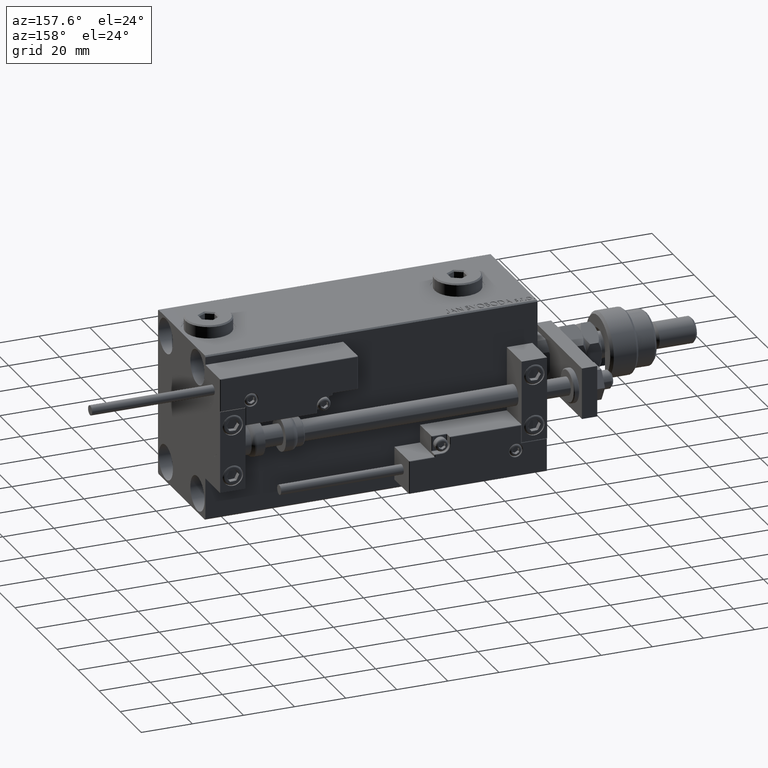
[diagram: clean part render]
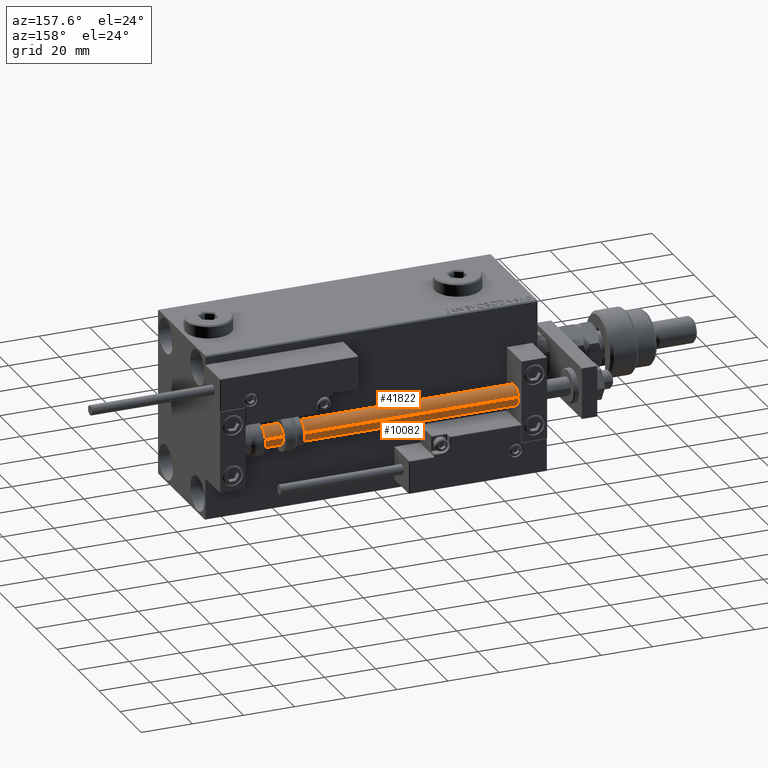
[diagram: same view with one multi-face feature highlighted, each face labeled with its STEP entity id]
A machine part, auxiliary view. The highlighted faces form ONE feature: a constant-radius fillet chain: 2 tangent blend faces with common blend radius 4 mm. The faces share edges in the B-rep.
Their STEP definitions:
[1] entity #41822 (Cylinder):
#30 = ORIENTED_EDGE ( 'NONE', *, *, #22172, .F. ) ;
#1838 = DIRECTION ( 'NONE',  ( 1.000000000000000000, 0.000000000000000000, 0.000000000000000000 ) ) ;
#2403 = EDGE_CURVE ( 'NONE', #45633, #34324, #8787, .T. ) ;
#2994 = CYLINDRICAL_SURFACE ( 'NONE', #21738, 4.000000000000000000 ) ;
#3385 = EDGE_CURVE ( 'NONE', #45633, #40291, #32394, .T. ) ;
#4905 = CIRCLE ( 'NONE', #25983, 4.000000000000000000 ) ;
#6274 = DIRECTION ( 'NONE',  ( 1.000000000000000000, 0.000000000000000000, 0.000000000000000000 ) ) ;
#6841 = DIRECTION ( 'NONE',  ( -0.000000000000000000, -0.000000000000000000, -1.000000000000000000 ) ) ;
#7110 = FACE_OUTER_BOUND ( 'NONE', #8977, .T. ) ;
#7442 = DIRECTION ( 'NONE',  ( -0.000000000000000000, -0.000000000000000000, -1.000000000000000000 ) ) ;
#8787 = CIRCLE ( 'NONE', #53517, 4.000000000000000000 ) ;
#8977 = EDGE_LOOP ( 'NONE', ( #40570, #48009, #23545, #30 ) ) ;
#14084 = CARTESIAN_POINT ( 'NONE',  ( 4.000000000000000000, 4.898587196589412829E-16, 130.0000000000000000 ) ) ;
#14951 = CARTESIAN_POINT ( 'NONE',  ( 4.000000000000000000, 4.898587196589412829E-16, 130.0000000000000000 ) ) ;
#17699 = CARTESIAN_POINT ( 'NONE',  ( -4.000000000000000000, 0.000000000000000000, 2.000000000000029310 ) ) ;
#19761 = DIRECTION ( 'NONE',  ( -1.000000000000000000, 0.000000000000000000, 0.000000000000000000 ) ) ;
#19808 = CARTESIAN_POINT ( 'NONE',  ( -4.000000000000000000, 0.000000000000000000, 130.0000000000000000 ) ) ;
#21622 = EDGE_CURVE ( 'NONE', #40291, #27126, #4905, .T. ) ;
#21738 = AXIS2_PLACEMENT_3D ( 'NONE', #53550, #6841, #19761 ) ;
#22172 = EDGE_CURVE ( 'NONE', #34324, #27126, #48646, .T. ) ;
#23545 = ORIENTED_EDGE ( 'NONE', *, *, #21622, .T. ) ;
#24155 = DIRECTION ( 'NONE',  ( -0.000000000000000000, -0.000000000000000000, -1.000000000000000000 ) ) ;
#25983 = AXIS2_PLACEMENT_3D ( 'NONE', #44190, #36225, #6274 ) ;
#27126 = VERTEX_POINT ( 'NONE', #17699 ) ;
#29311 = CARTESIAN_POINT ( 'NONE',  ( 4.000000000000000000, 4.898587196589412829E-16, 2.000000000000029310 ) ) ;
#32394 = LINE ( 'NONE', #14084, #44761 ) ;
#33959 = CARTESIAN_POINT ( 'NONE',  ( -4.000000000000000000, 0.000000000000000000, 130.0000000000000000 ) ) ;
#34324 = VERTEX_POINT ( 'NONE', #33959 ) ;
#35657 = VECTOR ( 'NONE', #7442, 1000.000000000000000 ) ;
#36225 = DIRECTION ( 'NONE',  ( -0.000000000000000000, -0.000000000000000000, 1.000000000000000000 ) ) ;
#40289 = CARTESIAN_POINT ( 'NONE',  ( 0.000000000000000000, 0.000000000000000000, 130.0000000000000000 ) ) ;
#40291 = VERTEX_POINT ( 'NONE', #29311 ) ;
#40570 = ORIENTED_EDGE ( 'NONE', *, *, #2403, .F. ) ;
#41822 = ADVANCED_FACE ( 'NONE', ( #7110 ), #2994, .T. ) ;
#43593 = DIRECTION ( 'NONE',  ( 0.000000000000000000, 0.000000000000000000, 1.000000000000000000 ) ) ;
#44190 = CARTESIAN_POINT ( 'NONE',  ( 0.000000000000000000, 0.000000000000000000, 2.000000000000029310 ) ) ;
#44761 = VECTOR ( 'NONE', #24155, 1000.000000000000000 ) ;
#45633 = VERTEX_POINT ( 'NONE', #14951 ) ;
#48009 = ORIENTED_EDGE ( 'NONE', *, *, #3385, .T. ) ;
#48646 = LINE ( 'NONE', #19808, #35657 ) ;
#53517 = AXIS2_PLACEMENT_3D ( 'NONE', #40289, #43593, #1838 ) ;
#53550 = CARTESIAN_POINT ( 'NONE',  ( 0.000000000000000000, 0.000000000000000000, 130.0000000000000000 ) ) ;
[2] entity #10082 (Cylinder):
#1135 = FACE_OUTER_BOUND ( 'NONE', #15844, .T. ) ;
#1665 = DIRECTION ( 'NONE',  ( -1.000000000000000000, 0.000000000000000000, 0.000000000000000000 ) ) ;
#3283 = DIRECTION ( 'NONE',  ( -0.000000000000000000, -0.000000000000000000, 1.000000000000000000 ) ) ;
#3385 = EDGE_CURVE ( 'NONE', #45633, #40291, #32394, .T. ) ;
#4420 = EDGE_CURVE ( 'NONE', #34324, #45633, #31648, .T. ) ;
#7442 = DIRECTION ( 'NONE',  ( -0.000000000000000000, -0.000000000000000000, -1.000000000000000000 ) ) ;
#8699 = AXIS2_PLACEMENT_3D ( 'NONE', #19828, #49483, #36581 ) ;
#10082 = ADVANCED_FACE ( 'NONE', ( #1135 ), #34676, .T. ) ;
#14084 = CARTESIAN_POINT ( 'NONE',  ( 4.000000000000000000, 4.898587196589412829E-16, 130.0000000000000000 ) ) ;
#14951 = CARTESIAN_POINT ( 'NONE',  ( 4.000000000000000000, 4.898587196589412829E-16, 130.0000000000000000 ) ) ;
#15844 = EDGE_LOOP ( 'NONE', ( #18475, #32774, #31963, #32348 ) ) ;
#17617 = AXIS2_PLACEMENT_3D ( 'NONE', #40120, #3283, #28581 ) ;
#17699 = CARTESIAN_POINT ( 'NONE',  ( -4.000000000000000000, 0.000000000000000000, 2.000000000000029310 ) ) ;
#17722 = AXIS2_PLACEMENT_3D ( 'NONE', #51415, #39304, #1665 ) ;
#18475 = ORIENTED_EDGE ( 'NONE', *, *, #3385, .F. ) ;
#19808 = CARTESIAN_POINT ( 'NONE',  ( -4.000000000000000000, 0.000000000000000000, 130.0000000000000000 ) ) ;
#19828 = CARTESIAN_POINT ( 'NONE',  ( 0.000000000000000000, 0.000000000000000000, 130.0000000000000000 ) ) ;
#22172 = EDGE_CURVE ( 'NONE', #34324, #27126, #48646, .T. ) ;
#24155 = DIRECTION ( 'NONE',  ( -0.000000000000000000, -0.000000000000000000, -1.000000000000000000 ) ) ;
#27126 = VERTEX_POINT ( 'NONE', #17699 ) ;
#28581 = DIRECTION ( 'NONE',  ( 1.000000000000000000, 0.000000000000000000, 0.000000000000000000 ) ) ;
#29311 = CARTESIAN_POINT ( 'NONE',  ( 4.000000000000000000, 4.898587196589412829E-16, 2.000000000000029310 ) ) ;
#31648 = CIRCLE ( 'NONE', #8699, 4.000000000000000000 ) ;
#31963 = ORIENTED_EDGE ( 'NONE', *, *, #22172, .T. ) ;
#32348 = ORIENTED_EDGE ( 'NONE', *, *, #51624, .T. ) ;
#32394 = LINE ( 'NONE', #14084, #44761 ) ;
#32774 = ORIENTED_EDGE ( 'NONE', *, *, #4420, .F. ) ;
#33959 = CARTESIAN_POINT ( 'NONE',  ( -4.000000000000000000, 0.000000000000000000, 130.0000000000000000 ) ) ;
#34306 = CIRCLE ( 'NONE', #17617, 4.000000000000000000 ) ;
#34324 = VERTEX_POINT ( 'NONE', #33959 ) ;
#34676 = CYLINDRICAL_SURFACE ( 'NONE', #17722, 4.000000000000000000 ) ;
#35657 = VECTOR ( 'NONE', #7442, 1000.000000000000000 ) ;
#36581 = DIRECTION ( 'NONE',  ( 1.000000000000000000, 0.000000000000000000, 0.000000000000000000 ) ) ;
#39304 = DIRECTION ( 'NONE',  ( -0.000000000000000000, -0.000000000000000000, -1.000000000000000000 ) ) ;
#40120 = CARTESIAN_POINT ( 'NONE',  ( 0.000000000000000000, 0.000000000000000000, 2.000000000000029310 ) ) ;
#40291 = VERTEX_POINT ( 'NONE', #29311 ) ;
#44761 = VECTOR ( 'NONE', #24155, 1000.000000000000000 ) ;
#45633 = VERTEX_POINT ( 'NONE', #14951 ) ;
#48646 = LINE ( 'NONE', #19808, #35657 ) ;
#49483 = DIRECTION ( 'NONE',  ( 0.000000000000000000, 0.000000000000000000, 1.000000000000000000 ) ) ;
#51415 = CARTESIAN_POINT ( 'NONE',  ( 0.000000000000000000, 0.000000000000000000, 130.0000000000000000 ) ) ;
#51624 = EDGE_CURVE ( 'NONE', #27126, #40291, #34306, .T. ) ;